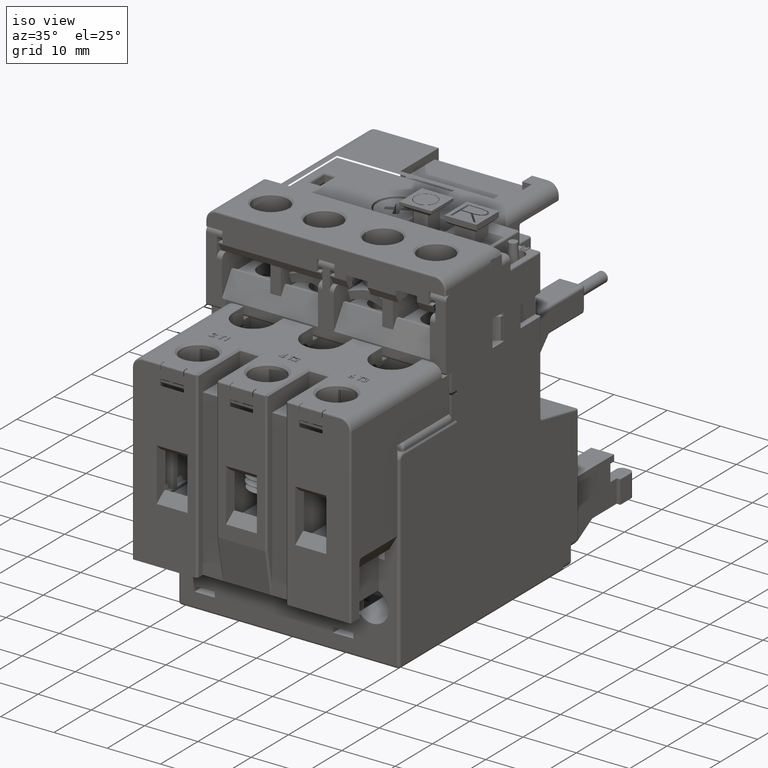
[diagram: clean part render]
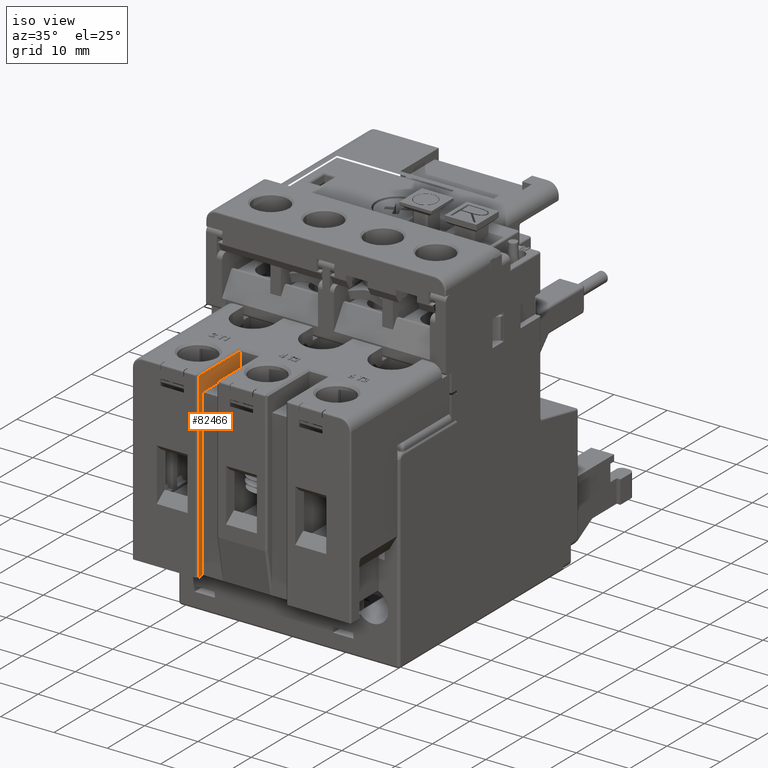
[diagram: same view with one face highlighted and labeled with its STEP entity id]
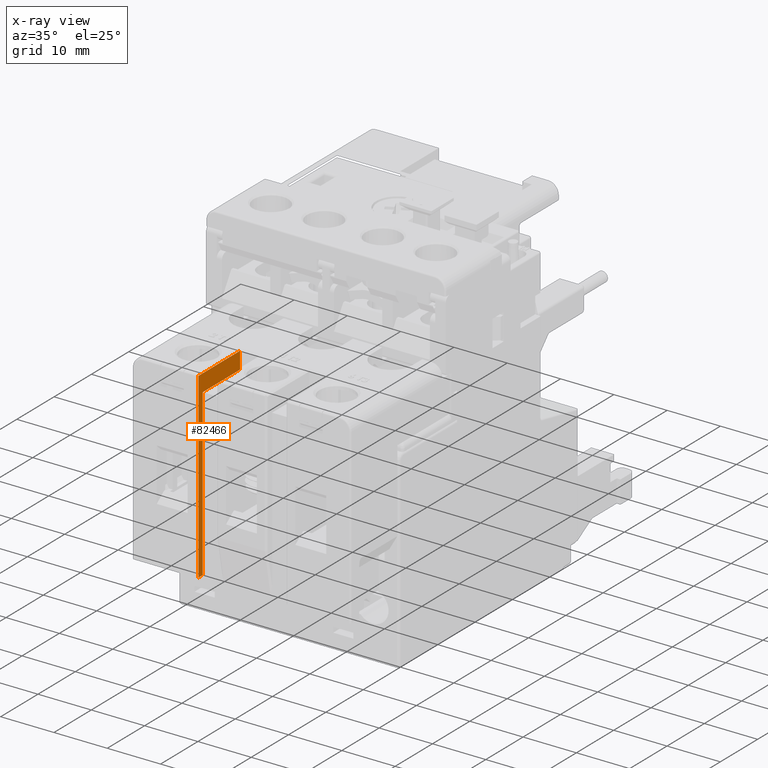
[diagram: x-ray of the same camera — body ghosted, the highlighted face saturated]
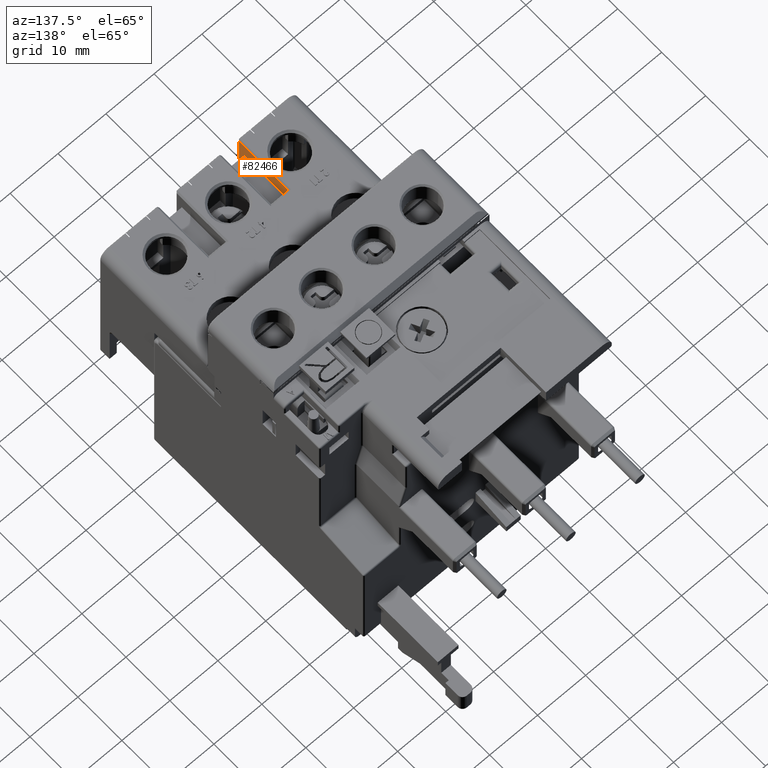
[diagram: same view with one face highlighted and labeled with its STEP entity id]
A machine part, iso view. The second image highlights one B-rep face of the part: STEP entity #82466.
The next image is the same camera in x-ray: the body ghosted, the highlighted face saturated — about 0% of this face is hidden behind the body in this view.
A second angle (auxiliary view) of the same face is appended — the face is thin or edge-on in the first view.
In plain terms, the highlighted planar face has unit normal (-1, 0, 0).
Its self-contained STEP definition (entity closure, byte-faithful):
#22372=DIRECTION('',(0.E0,0.E0,1.E0));
#22373=VECTOR('',#22372,1.220472440945E0);
#22374=CARTESIAN_POINT('',(-2.618110236220E-1,-9.803149606299E-1,
-1.811023622047E0));
#22375=LINE('',#22374,#22373);
#22407=DIRECTION('',(0.E0,-1.E0,0.E0));
#22408=VECTOR('',#22407,4.724409448819E-2);
#22409=CARTESIAN_POINT('',(-2.618110236220E-1,-9.803149606299E-1,
-1.811023622047E0));
#22410=LINE('',#22409,#22408);
#22414=DIRECTION('',(0.E0,-1.945941783279E-14,1.E0));
#22415=VECTOR('',#22414,1.346456692913E0);
#22416=CARTESIAN_POINT('',(-2.618110236220E-1,-1.027559055118E0,
-1.811023622047E0));
#22417=LINE('',#22416,#22415);
#22421=DIRECTION('',(0.E0,-1.E0,0.E0));
#22422=VECTOR('',#22421,3.937007874016E-1);
#22423=CARTESIAN_POINT('',(-2.618110236220E-1,-5.866141732283E-1,
-5.905511811024E-1));
#22424=LINE('',#22423,#22422);
#22482=DIRECTION('',(0.E0,-1.E0,5.967250503248E-14));
#22483=VECTOR('',#22482,4.409448818898E-1);
#22484=CARTESIAN_POINT('',(-2.618110236220E-1,-5.866141732283E-1,
-4.645669291339E-1));
#22485=LINE('',#22484,#22483);
#24338=DIRECTION('',(0.E0,0.E0,1.E0));
#24339=VECTOR('',#24338,1.259842519685E-1);
#24340=CARTESIAN_POINT('',(-2.618110236220E-1,-5.866141732283E-1,
-5.905511811024E-1));
#24341=LINE('',#24340,#24339);
#57313=CARTESIAN_POINT('',(-2.618110236220E-1,-1.027559055118E0,
-1.811023622047E0));
#57314=VERTEX_POINT('',#57313);
#57315=CARTESIAN_POINT('',(-2.618110236220E-1,-9.803149606299E-1,
-1.811023622047E0));
#57316=VERTEX_POINT('',#57315);
#62626=CARTESIAN_POINT('',(-2.618110236220E-1,-9.803149606299E-1,
-5.905511811024E-1));
#62627=VERTEX_POINT('',#62626);
#62632=CARTESIAN_POINT('',(-2.618110236220E-1,-5.866141732283E-1,
-5.905511811024E-1));
#62633=VERTEX_POINT('',#62632);
#62634=CARTESIAN_POINT('',(-2.618110236220E-1,-1.027559055118E0,
-4.645669291338E-1));
#62635=VERTEX_POINT('',#62634);
#62636=CARTESIAN_POINT('',(-2.618110236220E-1,-5.866141732283E-1,
-4.645669291339E-1));
#62637=VERTEX_POINT('',#62636);
#82450=CARTESIAN_POINT('',(-2.618110236220E-1,-5.866141732283E-1,
-5.708661417323E-1));
#82451=DIRECTION('',(-1.E0,0.E0,0.E0));
#82452=DIRECTION('',(0.E0,-1.E0,0.E0));
#82453=AXIS2_PLACEMENT_3D('',#82450,#82451,#82452);
#82454=PLANE('',#82453);
#82455=ORIENTED_EDGE('',*,*,#82412,.F.);
#82456=ORIENTED_EDGE('',*,*,#67732,.T.);
#82458=ORIENTED_EDGE('',*,*,#82457,.T.);
#82460=ORIENTED_EDGE('',*,*,#82459,.F.);
#82462=ORIENTED_EDGE('',*,*,#82461,.F.);
#82463=ORIENTED_EDGE('',*,*,#82442,.T.);
#82464=EDGE_LOOP('',(#82455,#82456,#82458,#82460,#82462,#82463));
#82465=FACE_OUTER_BOUND('',#82464,.F.);
#67732=EDGE_CURVE('',#57316,#57314,#22410,.T.);
#82412=EDGE_CURVE('',#57316,#62627,#22375,.T.);
#82442=EDGE_CURVE('',#62633,#62627,#22424,.T.);
#82457=EDGE_CURVE('',#57314,#62635,#22417,.T.);
#82459=EDGE_CURVE('',#62637,#62635,#22485,.T.);
#82461=EDGE_CURVE('',#62633,#62637,#24341,.T.);
#82466=ADVANCED_FACE('',(#82465),#82454,.F.);